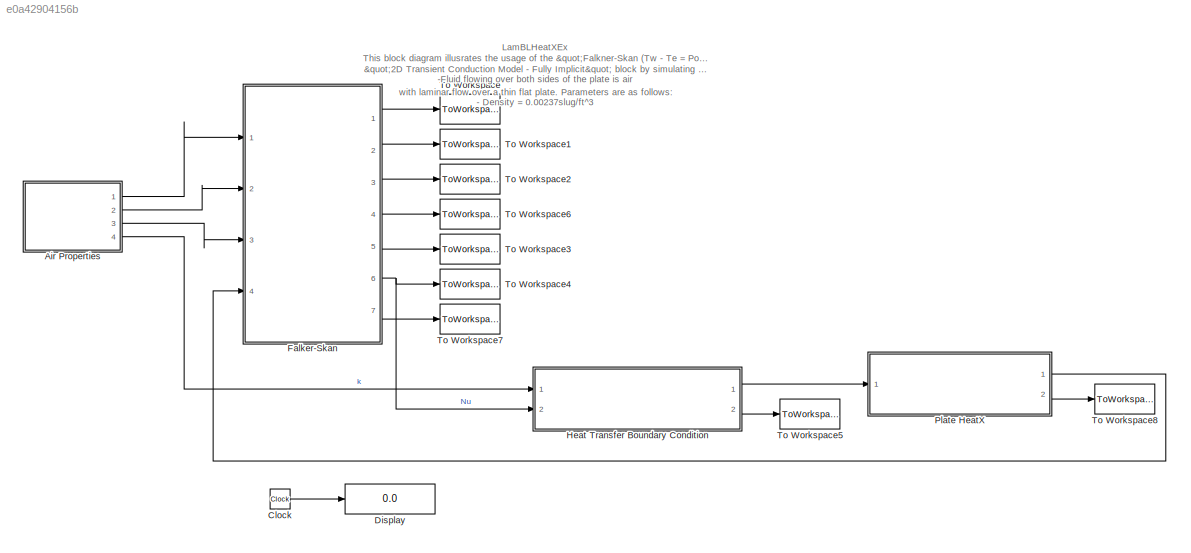
MODEL slx_e0a42904156b
KIND model
CONFIG AbsTol = auto
CONFIG FixedStep = dt
CONFIG MaxStep = auto
CONFIG MinStep = auto
CONFIG RelTol = 1e-3
CONFIG SampleTimeConstraint = Unconstrained
CONFIG Solver = FixedStepDiscrete
CONFIG SolverMode = Auto
CONFIG SolverName = FixedStepDiscrete
CONFIG StartTime = 0.0
CONFIG StopTime = 1500
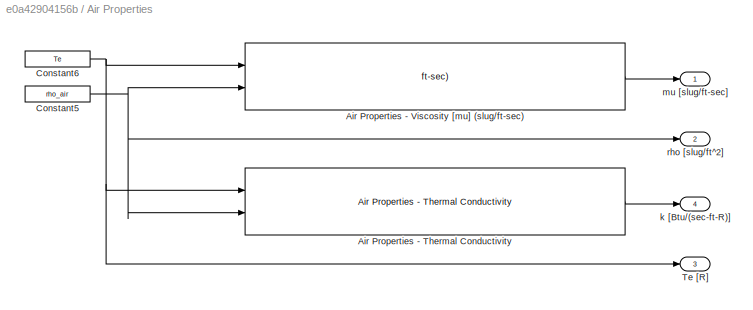
BLOCK [SubSystem] Air Properties
  Ports = [0, 4]
  RequestExecContextInheritance = off
BLOCK [Reference] Air Properties/Air Properties - Thermal Conductivity  REF=lib_AirProps_ThermCond/Air Properties - Thermal Conductivity
  BN_M = double(gcb)
  Ports = [2, 1]
  SourceBlock = lib_AirProps_ThermCond/Air Properties - Thermal Conductivity
  SourceType = TSAT: Air Properties - Thermal Conductivity Block
BLOCK [Reference] Air Properties/Air Properties - Viscosity [mu] (slug//ft-sec)  REF=lib_AirProps_Viscosity/Air Properties - Viscosity [mu] (slug//ft-sec)
  BN_M = double(gcb)
  Ports = [2, 1]
  SourceBlock = lib_AirProps_Viscosity/Air Properties - Viscosity [mu] (slug//ft-sec)
  SourceType = TSAT: Air Properties - Viscosity Block
BLOCK [Constant] Air Properties/Constant5
  Value = rho_air
BLOCK [Constant] Air Properties/Constant6
  Value = Te
BLOCK [Outport] Air Properties/Te [R]
  IconDisplay = Port number
  Port = 3
BLOCK [Outport] Air Properties/k [Btu//(sec-ft-R)]
  IconDisplay = Port number
  Port = 4
BLOCK [Outport] Air Properties/mu [slug//ft-sec]
  IconDisplay = Port number
BLOCK [Outport] Air Properties/rho [slug//ft^2]
  IconDisplay = Port number
  Port = 2
BLOCK [Clock] Clock
BLOCK [Display] Display
  Decimation = 1
  Ports = [1]
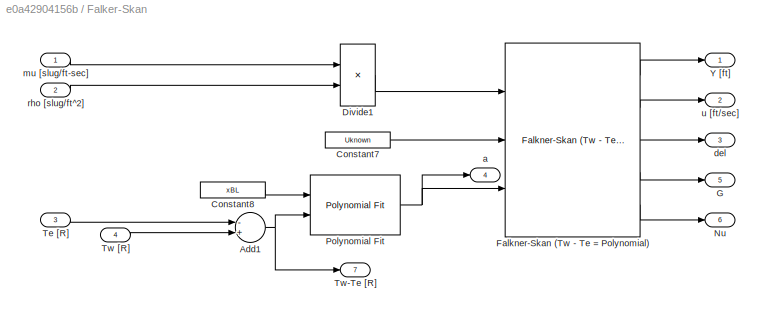
BLOCK [SubSystem] Falker-Skan
  Ports = [4, 7]
  RequestExecContextInheritance = off
BLOCK [Sum] Falker-Skan/Add1
  InputSameDT = off
  Inputs = -+
  OutDataTypeStr = Inherit: Inherit via internal rule
  Ports = [2, 1]
  SaturateOnIntegerOverflow = off
BLOCK [Constant] Falker-Skan/Constant7
  Value = Uknown
BLOCK [Constant] Falker-Skan/Constant8
  Value = xBL
BLOCK [Product] Falker-Skan/Divide1
  InputSameDT = off
  Inputs = */
  OutDataTypeStr = Inherit: Inherit via internal rule
  Ports = [2, 1]
  RndMeth = Floor
  SaturateOnIntegerOverflow = off
BLOCK [Reference] Falker-Skan/Falkner-Skan (Tw - Te = Polynomial)  REF=lib_Convection_FalknerSkanTempVary/Falkner-Skan (Tw - Te = Polynomial)
  BN_M = double(gcb)
  Ports = [3, 5]
  Pr_M = Pr
  SourceBlock = lib_Convection_FalknerSkanTempVary/Falkner-Skan (Tw - Te = Polynomial)
  SourceType = TSAT: Falkner-Skan (Tw-Te = Polynomial)
  beta_M = beta
  imax_M = 1000
  n_M = n
  x_M = xBL
  x_Uknown_M = x_Uknown
BLOCK [Outport] Falker-Skan/G
  IconDisplay = Port number
  Port = 5
BLOCK [Outport] Falker-Skan/Nu
  IconDisplay = Port number
  Port = 6
BLOCK [Reference] Falker-Skan/Polynomial Fit  REF=lib_GenTools_PolynomialFit/Polynomial Fit
  BN_M = double(gcb)
  N_M = N
  Ports = [2, 1]
  SourceBlock = lib_GenTools_PolynomialFit/Polynomial Fit
  SourceType = TSAT: Polynomial Fit
BLOCK [Inport] Falker-Skan/Te [R]
  IconDisplay = Port number
  Port = 3
BLOCK [Inport] Falker-Skan/Tw [R]
  IconDisplay = Port number
  Port = 4
BLOCK [Outport] Falker-Skan/Tw-Te [R]
  IconDisplay = Port number
  Port = 7
BLOCK [Outport] Falker-Skan/Y [ft]
  IconDisplay = Port number
BLOCK [Outport] Falker-Skan/a
  IconDisplay = Port number
  Port = 4
BLOCK [Outport] Falker-Skan/del
  IconDisplay = Port number
  Port = 3
BLOCK [Inport] Falker-Skan/mu [slug//ft-sec]
  IconDisplay = Port number
BLOCK [Inport] Falker-Skan/rho [slug//ft^2]
  IconDisplay = Port number
  Port = 2
BLOCK [Outport] Falker-Skan/u [ft//sec]
  IconDisplay = Port number
  Port = 2
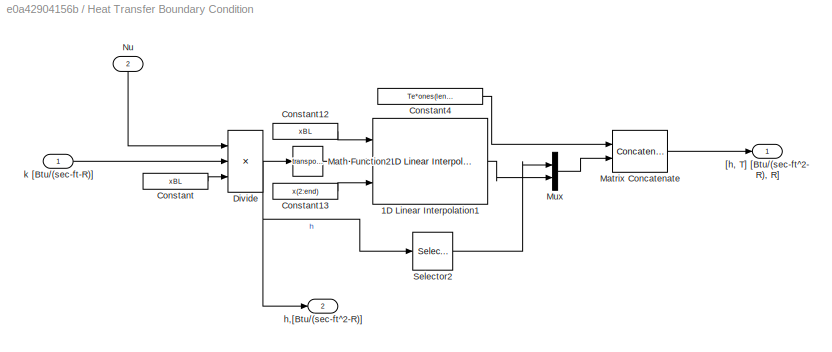
BLOCK [SubSystem] Heat Transfer Boundary Condition
  Ports = [2, 2]
  RequestExecContextInheritance = off
BLOCK [Reference] Heat Transfer Boundary Condition/1D Linear Interpolation1  REF=lib_GenTools_1DlinearInterp/1D Linear Interpolation
  BN_M = double(gcb)
  Ports = [3, 1]
  SourceBlock = lib_GenTools_1DlinearInterp/1D Linear Interpolation
  SourceType = TSAT - 1D Linear Interpolation Block
BLOCK [Constant] Heat Transfer Boundary Condition/Constant
  Value = xBL
BLOCK [Constant] Heat Transfer Boundary Condition/Constant12
  Value = xBL
BLOCK [Constant] Heat Transfer Boundary Condition/Constant13
  Value = x(2:end)
BLOCK [Constant] Heat Transfer Boundary Condition/Constant4
  Value = Te*ones(length(x),1)
BLOCK [Product] Heat Transfer Boundary Condition/Divide
  InputSameDT = off
  Inputs = **/
  OutDataTypeStr = Inherit: Inherit via internal rule
  Ports = [3, 1]
  RndMeth = Floor
  SaturateOnIntegerOverflow = off
BLOCK [Math] Heat Transfer Boundary Condition/Math Function2
  Operator = transpose
  Ports = [1, 1]
BLOCK [Concatenate] Heat Transfer Boundary Condition/Matrix Concatenate
  ConcatenateDimension = 2
  Mode = Multidimensional array
  Ports = [2, 1]
BLOCK [Mux] Heat Transfer Boundary Condition/Mux
  DisplayOption = bar
  Inputs = 2
  Ports = [2, 1]
BLOCK [Inport] Heat Transfer Boundary Condition/Nu
  IconDisplay = Port number
  Port = 2
BLOCK [Selector] Heat Transfer Boundary Condition/Selector2
  InputPortWidth = length(xBL)
  Ports = [1, 1]
BLOCK [Outport] Heat Transfer Boundary Condition/[h, T] [Btu//(sec-ft^2-R), R]
  IconDisplay = Port number
BLOCK [Outport] Heat Transfer Boundary Condition/h,[Btu//(sec-ft^2-R)]
  IconDisplay = Port number
  Port = 2
BLOCK [Inport] Heat Transfer Boundary Condition/k [Btu//(sec-ft-R)]
  IconDisplay = Port number
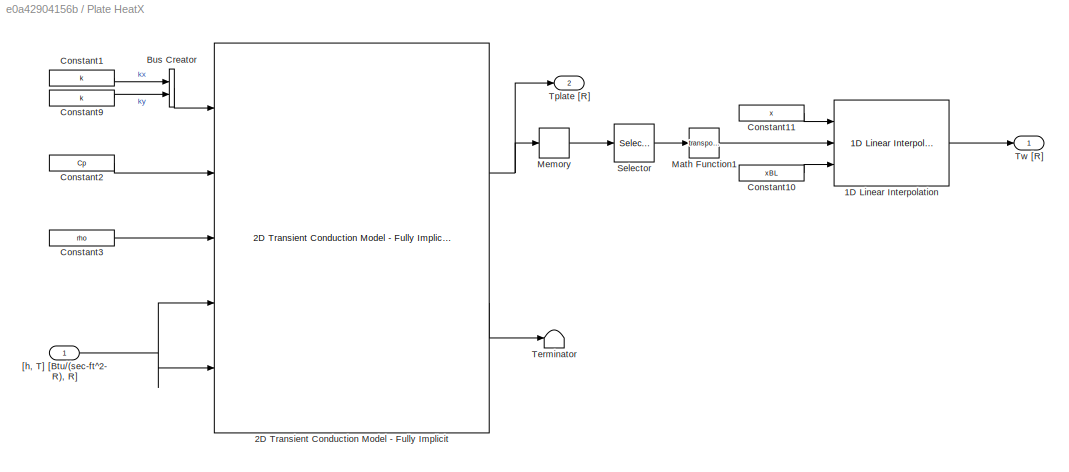
BLOCK [SubSystem] Plate HeatX
  Ports = [1, 2]
  RequestExecContextInheritance = off
BLOCK [Reference] Plate HeatX/1D Linear Interpolation  REF=lib_GenTools_1DlinearInterp/1D Linear Interpolation
  BN_M = double(gcb)
  Ports = [3, 1]
  SourceBlock = lib_GenTools_1DlinearInterp/1D Linear Interpolation
  SourceType = TSAT - 1D Linear Interpolation Block
BLOCK [Reference] Plate HeatX/2D Transient Conduction Model - Fully Implicit  REF=lib_Conduction_2DCondFullyImplicit/2D Transient Conduction Model - Fully Implicit
  BN_M = double(gcb)
  Ports = [5, 2]
  SourceBlock = lib_Conduction_2DCondFullyImplicit/2D Transient Conduction Model - Fully Implicit
  SourceType = TSAT: 2-D Transient Conduction Model - Fully Implicit Block
  T0_M = T0
  condB_M = off
  condL_M = off
  condR_M = off
  condT_M = off
  convB_M = on
  convL_M = off
  convR_M = off
  convT_M = on
  dt_M = dt
  radB_M = off
  radL_M = off
  radR_M = off
  radT_M = off
  shape_M = Planar in both directions
  x_M = x
  y_M = y0
BLOCK [BusCreator] Plate HeatX/Bus Creator
  DisplayOption = bar
  Inputs = 2
  Ports = [2, 1]
BLOCK [Constant] Plate HeatX/Constant1
  Value = k
BLOCK [Constant] Plate HeatX/Constant10
  Value = xBL
BLOCK [Constant] Plate HeatX/Constant11
  Value = x
BLOCK [Constant] Plate HeatX/Constant2
  Value = Cp
BLOCK [Constant] Plate HeatX/Constant3
  Value = rho
BLOCK [Constant] Plate HeatX/Constant9
  Value = k
BLOCK [Math] Plate HeatX/Math Function1
  Operator = transpose
  Ports = [1, 1]
BLOCK [Memory] Plate HeatX/Memory
  X0 = T0
BLOCK [Selector] Plate HeatX/Selector
  IndexOptions = Index vector (dialog),Select all
  Indices = size(y,1),1
  InputPortWidth = 3
  NumberOfDimensions = 2
  OutputSizes = 1,1
  Ports = [1, 1]
BLOCK [Terminator] Plate HeatX/Terminator
BLOCK [Outport] Plate HeatX/Tplate [R]
  IconDisplay = Port number
  Port = 2
BLOCK [Outport] Plate HeatX/Tw [R]
  IconDisplay = Port number
BLOCK [Inport] Plate HeatX/[h, T] [Btu//(sec-ft^2-R), R]
  IconDisplay = Port number
BLOCK [ToWorkspace] To Workspace
  FixptAsFi = on
  MaxDataPoints = inf
  Ports = [1]
  SampleTime = -1
  Save2DSignal = 3-D array (concatenate along third dimension)
  SaveFormat = Timeseries
  VariableName = Y
BLOCK [ToWorkspace] To Workspace1
  FixptAsFi = on
  MaxDataPoints = inf
  Ports = [1]
  SampleTime = -1
  Save2DSignal = 3-D array (concatenate along third dimension)
  SaveFormat = Timeseries
  VariableName = u
BLOCK [ToWorkspace] To Workspace2
  FixptAsFi = on
  MaxDataPoints = inf
  Ports = [1]
  SampleTime = -1
  Save2DSignal = 3-D array (concatenate along third dimension)
  SaveFormat = Timeseries
  VariableName = del
BLOCK [ToWorkspace] To Workspace3
  FixptAsFi = on
  MaxDataPoints = inf
  Ports = [1]
  SampleTime = -1
  Save2DSignal = 3-D array (concatenate along third dimension)
  SaveFormat = Timeseries
  VariableName = G
BLOCK [ToWorkspace] To Workspace4
  FixptAsFi = on
  MaxDataPoints = inf
  Ports = [1]
  SampleTime = -1
  Save2DSignal = 3-D array (concatenate along third dimension)
  SaveFormat = Timeseries
  VariableName = Nu
BLOCK [ToWorkspace] To Workspace5
  FixptAsFi = on
  MaxDataPoints = inf
  Ports = [1]
  SampleTime = -1
  Save2DSignal = 3-D array (concatenate along third dimension)
  SaveFormat = Timeseries
  VariableName = h
BLOCK [ToWorkspace] To Workspace6
  FixptAsFi = on
  MaxDataPoints = inf
  Ports = [1]
  SampleTime = -1
  Save2DSignal = 3-D array (concatenate along third dimension)
  SaveFormat = Timeseries
  VariableName = a
BLOCK [ToWorkspace] To Workspace7
  FixptAsFi = on
  MaxDataPoints = inf
  Ports = [1]
  SampleTime = -1
  Save2DSignal = 3-D array (concatenate along third dimension)
  SaveFormat = Timeseries
  VariableName = TwmTe
BLOCK [ToWorkspace] To Workspace8
  FixptAsFi = on
  MaxDataPoints = inf
  Ports = [1]
  SampleTime = -1
  Save2DSignal = 3-D array (concatenate along third dimension)
  SaveFormat = Timeseries
  VariableName = Tplate
ANNOTATION (root): LamBLHeatXEx This block diagram illusrates the usage of the "Falkner-Skan (Tw - Te = Polynomial)" block and "2D Transient Conduction Model - Fully Implicit" block by simulating heat transfer with laminar flow over a thin flat plate. Parameters are as follows: -Fluid flowing over both sides of the plate is air - Density = 0.00237slug/ft^3 - Free-stream velocity = 15ft/sec - Free-stream temperature ...<+278ch>
LINE Air Properties/Air Properties - Thermal Conductivity:1 -> Air Properties/k [Btu//(sec-ft-R)]:1
LINE Air Properties/Air Properties - Viscosity [mu] (slug//ft-sec):1 -> Air Properties/mu [slug//ft-sec]:1
NET Air Properties/Constant5:1 -> Air Properties/Air Properties - Thermal Conductivity:2, Air Properties/Air Properties - Viscosity [mu] (slug//ft-sec):2, Air Properties/rho [slug//ft^2]:1
NET Air Properties/Constant6:1 -> Air Properties/Air Properties - Thermal Conductivity:1, Air Properties/Air Properties - Viscosity [mu] (slug//ft-sec):1, Air Properties/Te [R]:1
LINE Air Properties:1 -> Falker-Skan:1
LINE Air Properties:2 -> Falker-Skan:2
LINE Air Properties:3 -> Falker-Skan:3
LINE Air Properties:4 -> Heat Transfer Boundary Condition:1
LINE Clock:1 -> Display:1
NET Falker-Skan/Add1:1 -> Falker-Skan/Polynomial Fit:2, Falker-Skan/Tw-Te [R]:1
LINE Falker-Skan/Constant7:1 -> Falker-Skan/Falkner-Skan (Tw - Te = Polynomial):2
LINE Falker-Skan/Constant8:1 -> Falker-Skan/Polynomial Fit:1
LINE Falker-Skan/Divide1:1 -> Falker-Skan/Falkner-Skan (Tw - Te = Polynomial):1
LINE Falker-Skan/Falkner-Skan (Tw - Te = Polynomial):1 -> Falker-Skan/Y [ft]:1
LINE Falker-Skan/Falkner-Skan (Tw - Te = Polynomial):2 -> Falker-Skan/u [ft//sec]:1
LINE Falker-Skan/Falkner-Skan (Tw - Te = Polynomial):3 -> Falker-Skan/del:1
LINE Falker-Skan/Falkner-Skan (Tw - Te = Polynomial):4 -> Falker-Skan/G:1
LINE Falker-Skan/Falkner-Skan (Tw - Te = Polynomial):5 -> Falker-Skan/Nu:1
NET Falker-Skan/Polynomial Fit:1 -> Falker-Skan/Falkner-Skan (Tw - Te = Polynomial):3, Falker-Skan/a:1
LINE Falker-Skan/Te [R]:1 -> Falker-Skan/Add1:1
LINE Falker-Skan/Tw [R]:1 -> Falker-Skan/Add1:2
LINE Falker-Skan/mu [slug//ft-sec]:1 -> Falker-Skan/Divide1:1
LINE Falker-Skan/rho [slug//ft^2]:1 -> Falker-Skan/Divide1:2
LINE Falker-Skan:1 -> To Workspace:1
LINE Falker-Skan:2 -> To Workspace1:1
LINE Falker-Skan:3 -> To Workspace2:1
LINE Falker-Skan:4 -> To Workspace6:1
LINE Falker-Skan:5 -> To Workspace3:1
NET Falker-Skan:6 -> Heat Transfer Boundary Condition:2, To Workspace4:1
LINE Falker-Skan:7 -> To Workspace7:1
LINE Heat Transfer Boundary Condition/1D Linear Interpolation1:1 -> Heat Transfer Boundary Condition/Mux:2
LINE Heat Transfer Boundary Condition/Constant12:1 -> Heat Transfer Boundary Condition/1D Linear Interpolation1:1
LINE Heat Transfer Boundary Condition/Constant13:1 -> Heat Transfer Boundary Condition/1D Linear Interpolation1:3
LINE Heat Transfer Boundary Condition/Constant4:1 -> Heat Transfer Boundary Condition/Matrix Concatenate:1
LINE Heat Transfer Boundary Condition/Constant:1 -> Heat Transfer Boundary Condition/Divide:3
NET Heat Transfer Boundary Condition/Divide:1 -> Heat Transfer Boundary Condition/Math Function2:1, Heat Transfer Boundary Condition/Selector2:1, Heat Transfer Boundary Condition/h,[Btu//(sec-ft^2-R)]:1
LINE Heat Transfer Boundary Condition/Math Function2:1 -> Heat Transfer Boundary Condition/1D Linear Interpolation1:2
LINE Heat Transfer Boundary Condition/Matrix Concatenate:1 -> Heat Transfer Boundary Condition/[h, T] [Btu//(sec-ft^2-R), R]:1
LINE Heat Transfer Boundary Condition/Mux:1 -> Heat Transfer Boundary Condition/Matrix Concatenate:2
LINE Heat Transfer Boundary Condition/Nu:1 -> Heat Transfer Boundary Condition/Divide:1
LINE Heat Transfer Boundary Condition/Selector2:1 -> Heat Transfer Boundary Condition/Mux:1
LINE Heat Transfer Boundary Condition/k [Btu//(sec-ft-R)]:1 -> Heat Transfer Boundary Condition/Divide:2
LINE Heat Transfer Boundary Condition:1 -> Plate HeatX:1
LINE Heat Transfer Boundary Condition:2 -> To Workspace5:1
LINE Plate HeatX/1D Linear Interpolation:1 -> Plate HeatX/Tw [R]:1
NET Plate HeatX/2D Transient Conduction Model - Fully Implicit:1 -> Plate HeatX/Memory:1, Plate HeatX/Tplate [R]:1
LINE Plate HeatX/2D Transient Conduction Model - Fully Implicit:2 -> Plate HeatX/Terminator:1
LINE Plate HeatX/Bus Creator:1 -> Plate HeatX/2D Transient Conduction Model - Fully Implicit:1
LINE Plate HeatX/Constant10:1 -> Plate HeatX/1D Linear Interpolation:3
LINE Plate HeatX/Constant11:1 -> Plate HeatX/1D Linear Interpolation:1
LINE Plate HeatX/Constant1:1 -> Plate HeatX/Bus Creator:1
LINE Plate HeatX/Constant2:1 -> Plate HeatX/2D Transient Conduction Model - Fully Implicit:2
LINE Plate HeatX/Constant3:1 -> Plate HeatX/2D Transient Conduction Model - Fully Implicit:3
LINE Plate HeatX/Constant9:1 -> Plate HeatX/Bus Creator:2
LINE Plate HeatX/Math Function1:1 -> Plate HeatX/1D Linear Interpolation:2
LINE Plate HeatX/Memory:1 -> Plate HeatX/Selector:1
LINE Plate HeatX/Selector:1 -> Plate HeatX/Math Function1:1
NET Plate HeatX/[h, T] [Btu//(sec-ft^2-R), R]:1 -> Plate HeatX/2D Transient Conduction Model - Fully Implicit:4, Plate HeatX/2D Transient Conduction Model - Fully Implicit:5
LINE Plate HeatX:1 -> Falker-Skan:4
LINE Plate HeatX:2 -> To Workspace8:1
note: NET lines group one-source signal fan-out (src -> all destinations, sorted); 1:1 wires keep LINE
